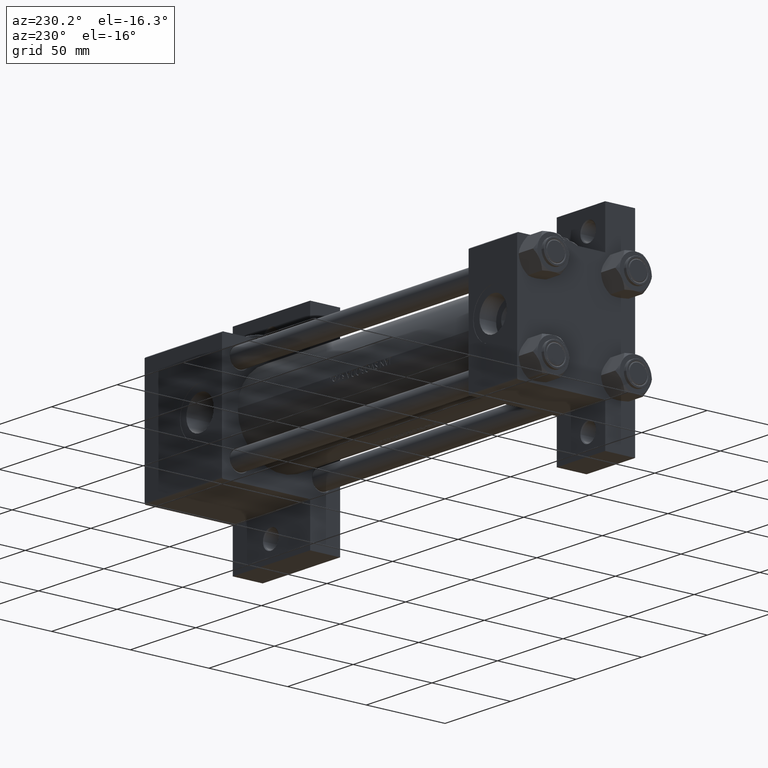
[diagram: clean part render]
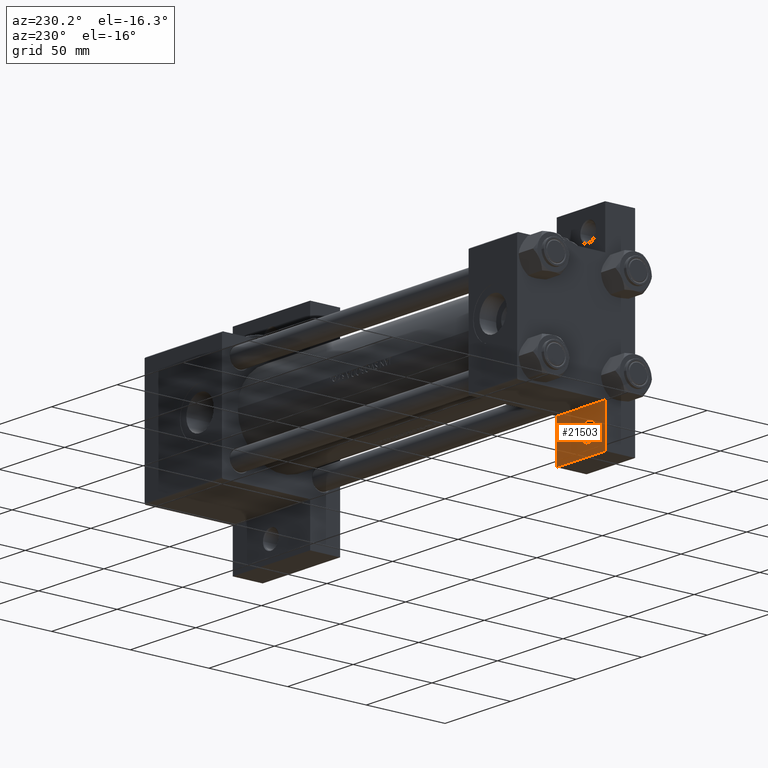
[diagram: same view with one face highlighted and labeled with its STEP entity id]
A machine part, auxiliary view. The second image highlights one B-rep face of the part: STEP entity #21503.
In plain terms, the highlighted planar face has unit normal (0, -1, 0).
Its self-contained STEP definition (entity closure, byte-faithful):
#265 = CARTESIAN_POINT ( 'NONE',  ( 1.595073532467135441E-14, 63.50000000000000000, -18.50000000000000355 ) ) ;
#1623 = LINE ( 'NONE', #16195, #34650 ) ;
#1851 = EDGE_LOOP ( 'NONE', ( #19106, #45888, #45201, #28123 ) ) ;
#2696 = CIRCLE ( 'NONE', #46721, 5.999499999999966526 ) ;
#3615 = VECTOR ( 'NONE', #25312, 1000.000000000000000 ) ;
#3627 = DIRECTION ( 'NONE',  ( 2.668805347656626678E-16, 1.000000000000000000, 0.000000000000000000 ) ) ;
#5214 = CARTESIAN_POINT ( 'NONE',  ( 37.00000000000001421, 63.50000000000000000, -18.50000000000000355 ) ) ;
#5284 = DIRECTION ( 'NONE',  ( 0.000000000000000000, 0.000000000000000000, -1.000000000000000000 ) ) ;
#5551 = VERTEX_POINT ( 'NONE', #32478 ) ;
#7101 = PLANE ( 'NONE',  #47755 ) ;
#9023 = VECTOR ( 'NONE', #45520, 1000.000000000000000 ) ;
#9103 = EDGE_CURVE ( 'NONE', #33074, #18352, #1623, .T. ) ;
#9156 = DIRECTION ( 'NONE',  ( 1.000000000000000000, -3.750753461571474945E-16, 0.000000000000000000 ) ) ;
#9553 = CARTESIAN_POINT ( 'NONE',  ( 12.99999999999999822, 50.99999999999997868, -18.50000000000000000 ) ) ;
#11541 = EDGE_CURVE ( 'NONE', #5551, #41525, #2696, .T. ) ;
#13907 = CARTESIAN_POINT ( 'NONE',  ( 37.00000000000000711, 37.50000000000000711, -18.50000000000000355 ) ) ;
#13941 = CIRCLE ( 'NONE', #29975, 5.999499999999966526 ) ;
#14930 = ORIENTED_EDGE ( 'NONE', *, *, #34900, .T. ) ;
#16195 = CARTESIAN_POINT ( 'NONE',  ( 8.470280871287256020E-15, 37.50000000000002842, -18.49999999999999645 ) ) ;
#18352 = VERTEX_POINT ( 'NONE', #13907 ) ;
#18396 = DIRECTION ( 'NONE',  ( -1.000000000000000000, 0.000000000000000000, -0.000000000000000000 ) ) ;
#19106 = ORIENTED_EDGE ( 'NONE', *, *, #41556, .T. ) ;
#21503 = ADVANCED_FACE ( 'NONE', ( #29674, #37713 ), #7101, .F. ) ;
#22063 = LINE ( 'NONE', #40639, #3615 ) ;
#25312 = DIRECTION ( 'NONE',  ( -2.877097866686192789E-16, -1.000000000000000000, 0.000000000000000000 ) ) ;
#25700 = LINE ( 'NONE', #38253, #9023 ) ;
#28123 = ORIENTED_EDGE ( 'NONE', *, *, #31309, .T. ) ;
#29313 = CARTESIAN_POINT ( 'NONE',  ( 0.000000000000000000, 37.49999999999999289, -18.49999999999999645 ) ) ;
#29674 = FACE_BOUND ( 'NONE', #48873, .T. ) ;
#29970 = LINE ( 'NONE', #44275, #37527 ) ;
#29975 = AXIS2_PLACEMENT_3D ( 'NONE', #42539, #34768, #35014 ) ;
#31309 = EDGE_CURVE ( 'NONE', #48135, #45479, #25700, .T. ) ;
#31627 = DIRECTION ( 'NONE',  ( -1.000000000000000000, 0.000000000000000000, 0.000000000000000000 ) ) ;
#32478 = CARTESIAN_POINT ( 'NONE',  ( 7.000500000000030809, 50.99999999999997868, -18.50000000000000000 ) ) ;
#33074 = VERTEX_POINT ( 'NONE', #29313 ) ;
#34092 = CARTESIAN_POINT ( 'NONE',  ( 18.99949999999996564, 50.99999999999997868, -18.50000000000000000 ) ) ;
#34178 = CARTESIAN_POINT ( 'NONE',  ( 0.000000000000000000, 0.000000000000000000, -18.50000000000000000 ) ) ;
#34650 = VECTOR ( 'NONE', #9156, 1000.000000000000000 ) ;
#34768 = DIRECTION ( 'NONE',  ( 0.000000000000000000, 0.000000000000000000, -1.000000000000000000 ) ) ;
#34900 = EDGE_CURVE ( 'NONE', #41525, #5551, #13941, .T. ) ;
#35014 = DIRECTION ( 'NONE',  ( -1.000000000000000000, 0.000000000000000000, 0.000000000000000000 ) ) ;
#37527 = VECTOR ( 'NONE', #3627, 1000.000000000000000 ) ;
#37713 = FACE_OUTER_BOUND ( 'NONE', #1851, .T. ) ;
#38253 = CARTESIAN_POINT ( 'NONE',  ( 1.595073532467135441E-14, 63.50000000000000000, -18.50000000000000355 ) ) ;
#40639 = CARTESIAN_POINT ( 'NONE',  ( 1.595073532467135757E-14, 63.50000000000001421, -18.50000000000000355 ) ) ;
#41525 = VERTEX_POINT ( 'NONE', #34092 ) ;
#41556 = EDGE_CURVE ( 'NONE', #45479, #33074, #22063, .T. ) ;
#42539 = CARTESIAN_POINT ( 'NONE',  ( 12.99999999999999822, 50.99999999999997868, -18.50000000000000000 ) ) ;
#44275 = CARTESIAN_POINT ( 'NONE',  ( 37.00000000000001421, 63.50000000000001421, -18.50000000000000355 ) ) ;
#44726 = DIRECTION ( 'NONE',  ( 0.000000000000000000, 0.000000000000000000, -1.000000000000000000 ) ) ;
#45201 = ORIENTED_EDGE ( 'NONE', *, *, #49524, .T. ) ;
#45479 = VERTEX_POINT ( 'NONE', #265 ) ;
#45520 = DIRECTION ( 'NONE',  ( -1.000000000000000000, 0.000000000000000000, 0.000000000000000000 ) ) ;
#45888 = ORIENTED_EDGE ( 'NONE', *, *, #9103, .T. ) ;
#46721 = AXIS2_PLACEMENT_3D ( 'NONE', #9553, #5284, #31627 ) ;
#47755 = AXIS2_PLACEMENT_3D ( 'NONE', #34178, #44726, #18396 ) ;
#48135 = VERTEX_POINT ( 'NONE', #5214 ) ;
#48873 = EDGE_LOOP ( 'NONE', ( #14930, #49604 ) ) ;
#49524 = EDGE_CURVE ( 'NONE', #18352, #48135, #29970, .T. ) ;
#49604 = ORIENTED_EDGE ( 'NONE', *, *, #11541, .T. ) ;